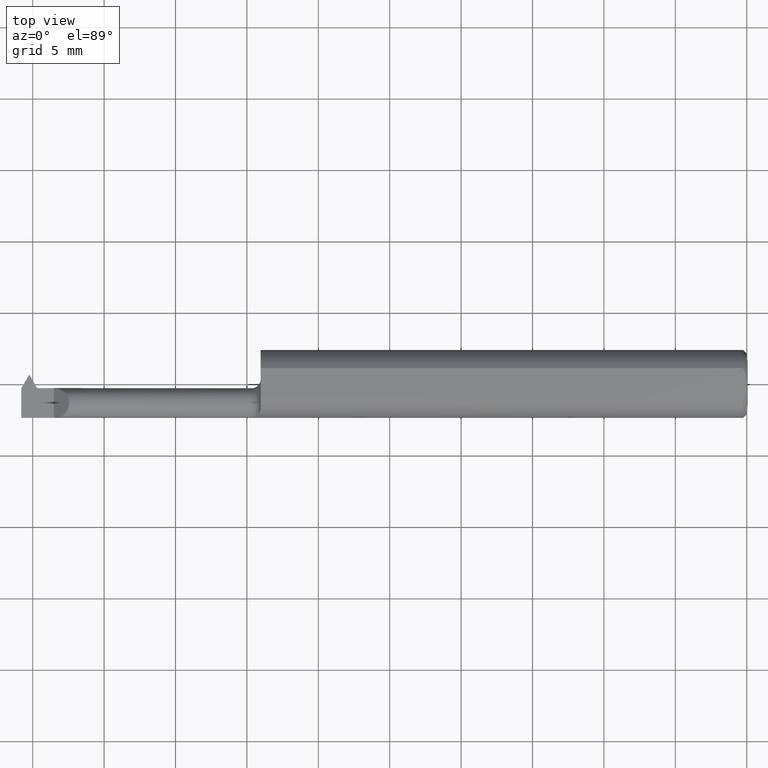
[diagram: clean part render]
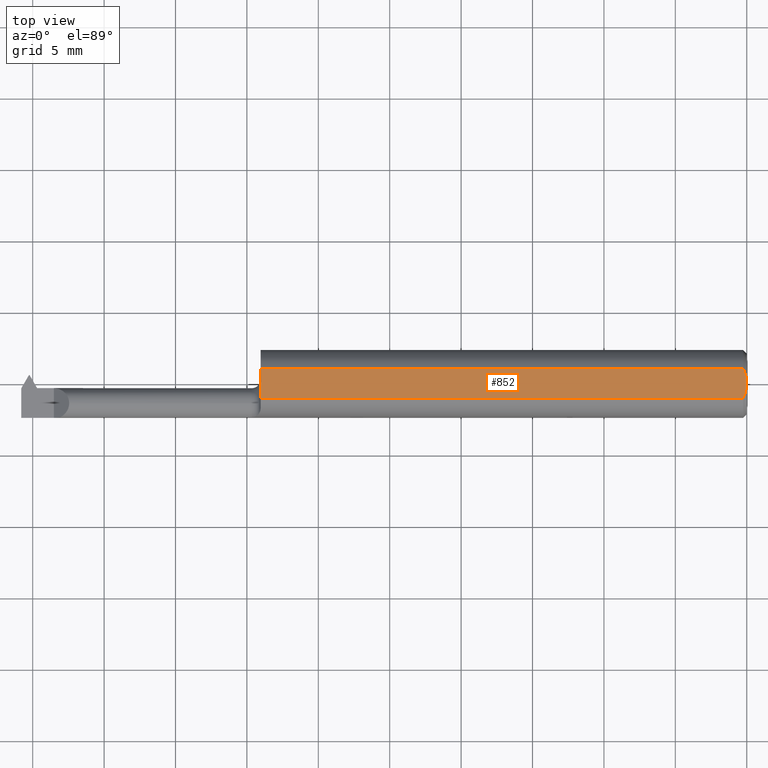
[diagram: same view with one face highlighted and labeled with its STEP entity id]
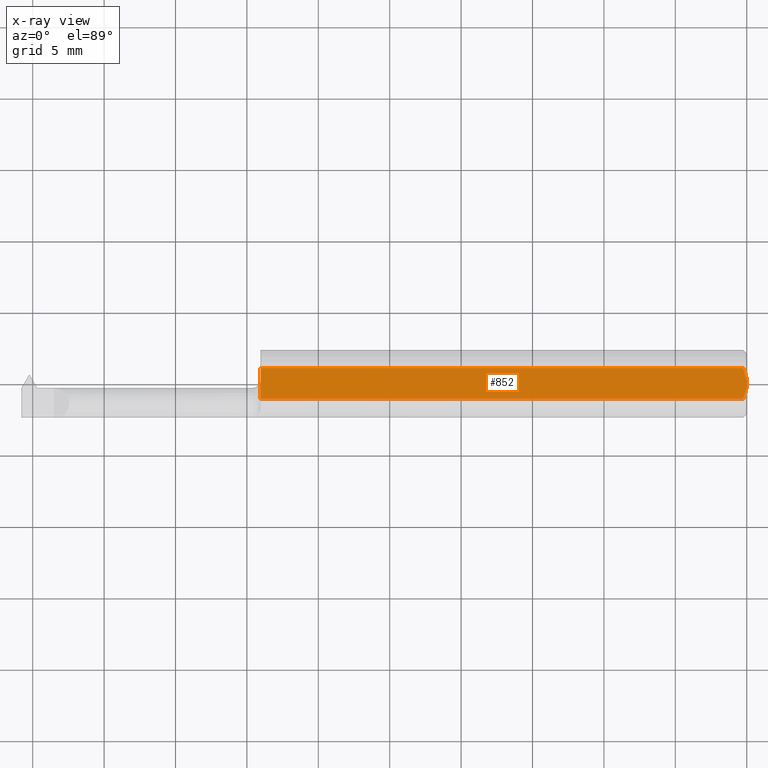
[diagram: x-ray of the same camera — body ghosted, the highlighted face saturated]
A machine part, top view. The second image highlights one B-rep face of the part: STEP entity #852.
The next image is the same camera in x-ray: the body ghosted, the highlighted face saturated — about 0% of this face is hidden behind the body in this view.
In plain terms, the highlighted planar face has unit normal (-0, 0, -1).
Its self-contained STEP definition (entity closure, byte-faithful):
#17 = LINE ( 'NONE', #328, #447 ) ;
#32 = VERTEX_POINT ( 'NONE', #82 ) ;
#34 = B_SPLINE_CURVE_WITH_KNOTS ( 'NONE', 3,
 ( #711, #243, #951, #895 ),
 .UNSPECIFIED., .F., .F.,
 ( 4, 4 ),
 ( 0.0006429768761302254079, 0.001744210492668871139 ),
 .UNSPECIFIED. ) ;
#45 = EDGE_CURVE ( 'NONE', #32, #64, #34, .T. ) ;
#64 = VERTEX_POINT ( 'NONE', #250 ) ;
#82 = CARTESIAN_POINT ( 'NONE',  ( -0.009999999999999620304, -0.04209513035969822403, 0.08360000000000007703 ) ) ;
#88 = DIRECTION ( 'NONE',  ( 1.000000000000000000, 1.224646799147353700E-16, -0.000000000000000000 ) ) ;
#91 = VECTOR ( 'NONE', #297, 39.37007874015748143 ) ;
#117 = CARTESIAN_POINT ( 'NONE',  ( -2.527892854954154511E-33, 1.627223653990697955E-16, 0.08360000000000007703 ) ) ;
#129 = VERTEX_POINT ( 'NONE', #875 ) ;
#176 = ORIENTED_EDGE ( 'NONE', *, *, #757, .T. ) ;
#181 = DIRECTION ( 'NONE',  ( 0.000000000000000000, 1.000000000000000000, 1.439633217571807837E-16 ) ) ;
#185 = VERTEX_POINT ( 'NONE', #743 ) ;
#194 = CARTESIAN_POINT ( 'NONE',  ( -0.009999999999999620304, 0.04209513035969856404, 0.08360000000000007703 ) ) ;
#212 = ORIENTED_EDGE ( 'NONE', *, *, #937, .T. ) ;
#243 = CARTESIAN_POINT ( 'NONE',  ( -0.004072204388638417730, -0.02891446873729291989, 0.08360000000000007703 ) ) ;
#245 = EDGE_LOOP ( 'NONE', ( #988, #212, #691, #1006, #176 ) ) ;
#246 = PLANE ( 'NONE',  #920 ) ;
#250 = CARTESIAN_POINT ( 'NONE',  ( -2.527892854954154511E-33, 1.627223653990697955E-16, 0.08360000000000007703 ) ) ;
#253 = CARTESIAN_POINT ( 'NONE',  ( -2.000000000000000000, 0.1185999999999999832, 0.08360000000000010478 ) ) ;
#297 = DIRECTION ( 'NONE',  ( -1.000000000000000000, -1.224646799147353700E-16, 0.000000000000000000 ) ) ;
#304 = CARTESIAN_POINT ( 'NONE',  ( -2.000000000000000000, 0.04209513035969831424, 0.08360000000000007703 ) ) ;
#328 = CARTESIAN_POINT ( 'NONE',  ( -2.000000000000000000, -0.04209513035969846689, 0.08360000000000007703 ) ) ;
#333 = CARTESIAN_POINT ( 'NONE',  ( -1.339999999999999858, 0.1185999999999999832, 0.08360000000000010478 ) ) ;
#423 = CARTESIAN_POINT ( 'NONE',  ( 3.551285674625139960E-16, 0.007317304829309030471, 0.08360000000000007703 ) ) ;
#447 = VECTOR ( 'NONE', #88, 39.37007874015748143 ) ;
#548 = VERTEX_POINT ( 'NONE', #789 ) ;
#638 = DIRECTION ( 'NONE',  ( 0.000000000000000000, 1.000000000000000000, 1.439633217571807837E-16 ) ) ;
#675 = CARTESIAN_POINT ( 'NONE',  ( -0.004492168231814345873, 0.02859366993844193044, 0.08360000000000004927 ) ) ;
#687 = EDGE_CURVE ( 'NONE', #64, #548, #721, .T. ) ;
#691 = ORIENTED_EDGE ( 'NONE', *, *, #45, .T. ) ;
#711 = CARTESIAN_POINT ( 'NONE',  ( -0.009999999999999620304, -0.04209513035969822403, 0.08360000000000007703 ) ) ;
#721 = B_SPLINE_CURVE_WITH_KNOTS ( 'NONE', 3,
 ( #117, #423, #755, #675, #913, #194 ),
 .UNSPECIFIED., .F., .F.,
 ( 4, 2, 4 ),
 ( 0.001744210492668871139, 0.002295110172257197167, 0.002846009851845522978 ),
 .UNSPECIFIED. ) ;
#743 = CARTESIAN_POINT ( 'NONE',  ( -1.339999999999999858, 0.04209513035969856404, 0.08360000000000007703 ) ) ;
#755 = CARTESIAN_POINT ( 'NONE',  ( -0.0009807498324114719435, 0.01453516766257757775, 0.08360000000000007703 ) ) ;
#757 = EDGE_CURVE ( 'NONE', #548, #185, #945, .T. ) ;
#789 = CARTESIAN_POINT ( 'NONE',  ( -0.009999999999999620304, 0.04209513035969856404, 0.08360000000000007703 ) ) ;
#805 = LINE ( 'NONE', #333, #849 ) ;
#812 = FACE_OUTER_BOUND ( 'NONE', #245, .T. ) ;
#849 = VECTOR ( 'NONE', #181, 39.37007874015748143 ) ;
#852 = ADVANCED_FACE ( 'NONE', ( #812 ), #246, .F. ) ;
#875 = CARTESIAN_POINT ( 'NONE',  ( -1.339999999999999858, -0.04209513035969839057, 0.08360000000000007703 ) ) ;
#895 = CARTESIAN_POINT ( 'NONE',  ( -2.527892854954154511E-33, 1.627223653990697955E-16, 0.08360000000000007703 ) ) ;
#897 = DIRECTION ( 'NONE',  ( -2.236471007245594496E-33, 1.439633217571807837E-16, -1.000000000000000000 ) ) ;
#898 = EDGE_CURVE ( 'NONE', #129, #185, #805, .T. ) ;
#913 = CARTESIAN_POINT ( 'NONE',  ( -0.007036739039485321451, 0.03550621559607057554, 0.08360000000000010478 ) ) ;
#920 = AXIS2_PLACEMENT_3D ( 'NONE', #253, #897, #638 ) ;
#937 = EDGE_CURVE ( 'NONE', #129, #32, #17, .T. ) ;
#945 = LINE ( 'NONE', #304, #91 ) ;
#951 = CARTESIAN_POINT ( 'NONE',  ( 3.440716514053894625E-16, -0.01462709520273651823, 0.08360000000000007703 ) ) ;
#988 = ORIENTED_EDGE ( 'NONE', *, *, #898, .F. ) ;
#1006 = ORIENTED_EDGE ( 'NONE', *, *, #687, .T. ) ;